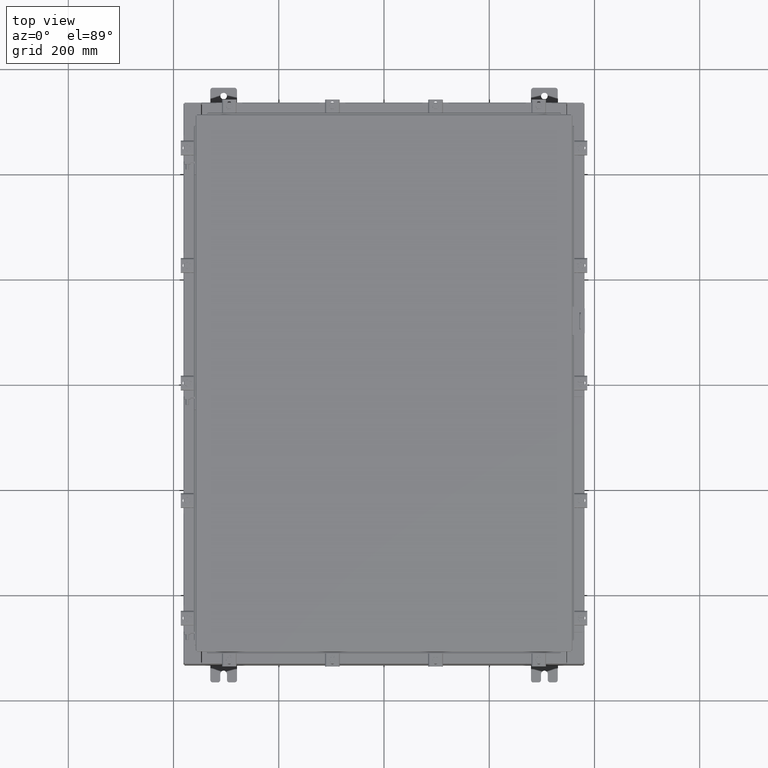
[diagram: clean part render]
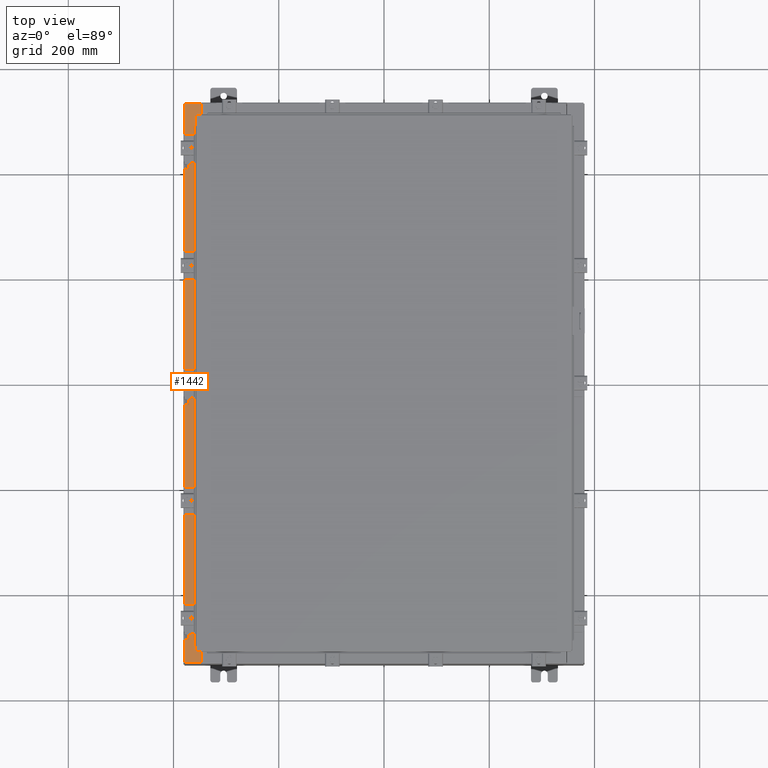
[diagram: same view with one face highlighted and labeled with its STEP entity id]
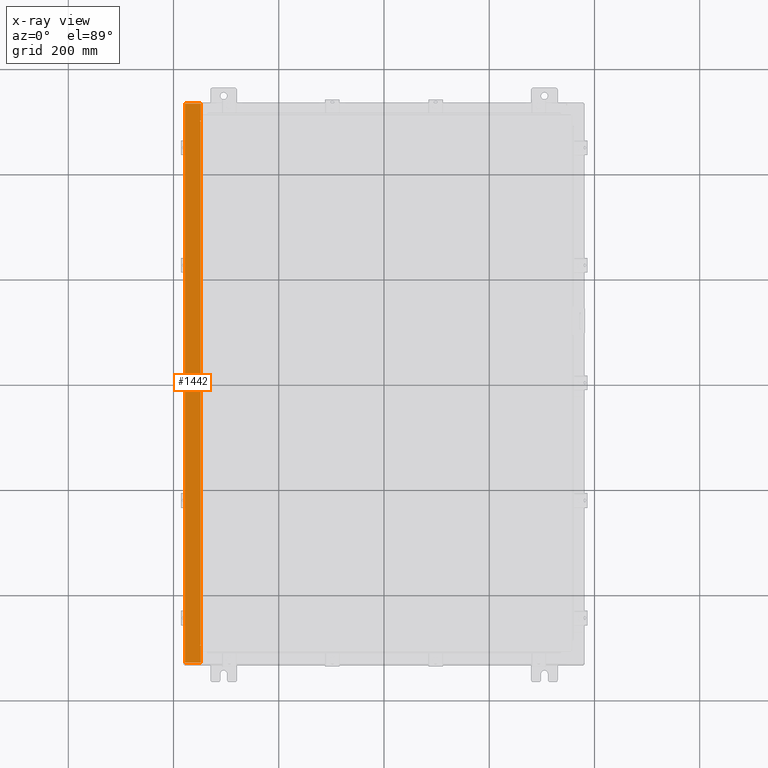
[diagram: x-ray of the same camera — body ghosted, the highlighted face saturated]
A machine part, top view. The second image highlights one B-rep face of the part: STEP entity #1442.
The next image is the same camera in x-ray: the body ghosted, the highlighted face saturated — about 0% of this face is hidden behind the body in this view.
In plain terms, the highlighted planar face has unit normal (0, 0, -1).
Its self-contained STEP definition (entity closure, byte-faithful):
#141 = EDGE_CURVE ( 'NONE', #13321, #10122, #23021, .T. ) ;
#815 = DIRECTION ( 'NONE',  ( 0.0000000000000000000, 1.000000000000000000, 0.0000000000000000000 ) ) ;
#888 = CARTESIAN_POINT ( 'NONE',  ( -14.91230000000002700, -20.92529999999998600, 7.925300000000000000 ) ) ;
#949 = VECTOR ( 'NONE', #3483, 39.37007874015748100 ) ;
#1159 = CARTESIAN_POINT ( 'NONE',  ( -13.75005000000002700, 19.61242500000000200, 7.925300000000010700 ) ) ;
#1371 = DIRECTION ( 'NONE',  ( -1.000000000000000000, 0.0000000000000000000, -7.132762385546384700E-015 ) ) ;
#1442 = ADVANCED_FACE ( 'NONE', ( #20357 ), #21675, .F. ) ;
#1450 = DIRECTION ( 'NONE',  ( 1.000000000000000000, 0.0000000000000000000, 0.0000000000000000000 ) ) ;
#1793 = VERTEX_POINT ( 'NONE', #14798 ) ;
#2578 = VECTOR ( 'NONE', #14928, 39.37007874015748100 ) ;
#2703 = CARTESIAN_POINT ( 'NONE',  ( -13.69970000000002800, 19.63110000000000400, 7.925300000000008900 ) ) ;
#3017 = ORIENTED_EDGE ( 'NONE', *, *, #10853, .T. ) ;
#3070 = DIRECTION ( 'NONE',  ( 1.000000000000000000, 0.0000000000000000000, 0.0000000000000000000 ) ) ;
#3167 = CIRCLE ( 'NONE', #22464, 0.01867499999999949400 ) ;
#3336 = LINE ( 'NONE', #14574, #18466 ) ;
#3483 = DIRECTION ( 'NONE',  ( -1.000000000000000000, 0.0000000000000000000, 2.170286390200049500E-014 ) ) ;
#3555 = VECTOR ( 'NONE', #815, 39.37007874015748100 ) ;
#3828 = LINE ( 'NONE', #19492, #23432 ) ;
#4512 = CARTESIAN_POINT ( 'NONE',  ( -13.69970000000002800, -20.92529999999998600, 7.925300000000008900 ) ) ;
#4933 = LINE ( 'NONE', #22646, #6133 ) ;
#4939 = LINE ( 'NONE', #19923, #19497 ) ;
#4994 = VERTEX_POINT ( 'NONE', #15684 ) ;
#5296 = CARTESIAN_POINT ( 'NONE',  ( -13.69970000000002800, -19.63109999999998600, 7.925300000000008900 ) ) ;
#5298 = ORIENTED_EDGE ( 'NONE', *, *, #23658, .F. ) ;
#5328 = VERTEX_POINT ( 'NONE', #6127 ) ;
#5444 = VERTEX_POINT ( 'NONE', #4512 ) ;
#5785 = CARTESIAN_POINT ( 'NONE',  ( -13.69970000000002800, 0.0000000000000000000, 7.925300000000008900 ) ) ;
#5854 = CARTESIAN_POINT ( 'NONE',  ( -13.71270000000002800, 19.59375000000000700, 7.925300000000010700 ) ) ;
#6127 = CARTESIAN_POINT ( 'NONE',  ( -13.75005000000002700, -19.59374999999998200, 7.925300000000007100 ) ) ;
#6133 = VECTOR ( 'NONE', #11228, 39.37007874015748100 ) ;
#6301 = EDGE_CURVE ( 'NONE', #5444, #20354, #18706, .T. ) ;
#7236 = VERTEX_POINT ( 'NONE', #7653 ) ;
#7323 = CARTESIAN_POINT ( 'NONE',  ( -13.75005000000002700, 19.63110000000000400, 7.925300000000007100 ) ) ;
#7602 = EDGE_CURVE ( 'NONE', #21667, #9503, #4939, .T. ) ;
#7653 = CARTESIAN_POINT ( 'NONE',  ( -13.71270000000002800, -19.59374999999998200, 7.925300000000010700 ) ) ;
#7732 = EDGE_CURVE ( 'NONE', #5328, #4994, #3167, .T. ) ;
#9223 = CARTESIAN_POINT ( 'NONE',  ( -13.75005000000002700, -19.63109999999998200, 7.925300000000010700 ) ) ;
#9363 = EDGE_CURVE ( 'NONE', #24283, #21667, #14962, .T. ) ;
#9503 = VERTEX_POINT ( 'NONE', #24239 ) ;
#9955 = VERTEX_POINT ( 'NONE', #2703 ) ;
#10013 = ORIENTED_EDGE ( 'NONE', *, *, #141, .F. ) ;
#10122 = VERTEX_POINT ( 'NONE', #16616 ) ;
#10853 = EDGE_CURVE ( 'NONE', #1793, #10122, #3336, .T. ) ;
#10980 = ORIENTED_EDGE ( 'NONE', *, *, #7602, .F. ) ;
#11228 = DIRECTION ( 'NONE',  ( 1.000000000000000000, -3.566381192773192400E-015, 7.132762385546384700E-015 ) ) ;
#11896 = DIRECTION ( 'NONE',  ( -1.000000000000000000, 0.0000000000000000000, 0.0000000000000000000 ) ) ;
#11932 = AXIS2_PLACEMENT_3D ( 'NONE', #1159, #14409, #3070 ) ;
#12081 = LINE ( 'NONE', #5785, #12692 ) ;
#12692 = VECTOR ( 'NONE', #19054, 39.37007874015748100 ) ;
#12713 = ORIENTED_EDGE ( 'NONE', *, *, #7732, .F. ) ;
#12747 = DIRECTION ( 'NONE',  ( -7.132762385546384700E-015, -0.0000000000000000000, 1.000000000000000000 ) ) ;
#12900 = VECTOR ( 'NONE', #19470, 39.37007874015748100 ) ;
#12956 = EDGE_CURVE ( 'NONE', #9955, #24283, #19947, .T. ) ;
#13259 = CARTESIAN_POINT ( 'NONE',  ( -13.75005000000002700, 19.59375000000000400, 7.925300000000007100 ) ) ;
#13321 = VERTEX_POINT ( 'NONE', #888 ) ;
#14054 = CARTESIAN_POINT ( 'NONE',  ( -13.69970000000002800, 0.0000000000000000000, 7.925300000000008900 ) ) ;
#14409 = DIRECTION ( 'NONE',  ( -7.132762385546384700E-015, -0.0000000000000000000, 1.000000000000000000 ) ) ;
#14574 = CARTESIAN_POINT ( 'NONE',  ( -5.679009539018309800E-014, 20.92530000000000700, 7.925300000000105700 ) ) ;
#14798 = CARTESIAN_POINT ( 'NONE',  ( -13.69970000000002800, 20.92530000000000700, 7.925300000000008900 ) ) ;
#14828 = CARTESIAN_POINT ( 'NONE',  ( -13.69970000000002800, 19.63110000000000400, 7.925300000000009800 ) ) ;
#14928 = DIRECTION ( 'NONE',  ( 1.000000000000000000, 0.0000000000000000000, -2.170286390200049500E-014 ) ) ;
#14962 = CIRCLE ( 'NONE', #11932, 0.01867499999999949400 ) ;
#15219 = AXIS2_PLACEMENT_3D ( 'NONE', #21221, #21129, #20178 ) ;
#15434 = EDGE_CURVE ( 'NONE', #13321, #5444, #4933, .T. ) ;
#15542 = ORIENTED_EDGE ( 'NONE', *, *, #15434, .T. ) ;
#15574 = EDGE_CURVE ( 'NONE', #4994, #20354, #17115, .T. ) ;
#15684 = CARTESIAN_POINT ( 'NONE',  ( -13.75005000000002700, -19.63109999999998200, 7.925300000000007100 ) ) ;
#16158 = ORIENTED_EDGE ( 'NONE', *, *, #6301, .T. ) ;
#16175 = DIRECTION ( 'NONE',  ( 1.000000000000000000, 0.0000000000000000000, 0.0000000000000000000 ) ) ;
#16616 = CARTESIAN_POINT ( 'NONE',  ( -14.91230000000002700, 20.92530000000000700, 7.925300000000000000 ) ) ;
#16955 = EDGE_CURVE ( 'NONE', #7236, #5328, #3828, .T. ) ;
#17115 = LINE ( 'NONE', #9223, #2578 ) ;
#17120 = LINE ( 'NONE', #5854, #21585 ) ;
#17295 = DIRECTION ( 'NONE',  ( -0.0000000000000000000, -1.000000000000000000, -0.0000000000000000000 ) ) ;
#18300 = ORIENTED_EDGE ( 'NONE', *, *, #9363, .F. ) ;
#18309 = EDGE_CURVE ( 'NONE', #9955, #1793, #12081, .T. ) ;
#18466 = VECTOR ( 'NONE', #1371, 39.37007874015748100 ) ;
#18706 = LINE ( 'NONE', #14054, #3555 ) ;
#19054 = DIRECTION ( 'NONE',  ( 0.0000000000000000000, 1.000000000000000000, 0.0000000000000000000 ) ) ;
#19470 = DIRECTION ( 'NONE',  ( -0.0000000000000000000, 1.000000000000000000, -0.0000000000000000000 ) ) ;
#19492 = CARTESIAN_POINT ( 'NONE',  ( -13.71270000000002800, -19.59374999999998200, 7.925300000000010700 ) ) ;
#19497 = VECTOR ( 'NONE', #16175, 39.37007874015748100 ) ;
#19923 = CARTESIAN_POINT ( 'NONE',  ( -13.75005000000002700, 19.59375000000000400, 7.925300000000010700 ) ) ;
#19947 = LINE ( 'NONE', #14828, #949 ) ;
#20178 = DIRECTION ( 'NONE',  ( -1.000000000000000000, 0.0000000000000000000, -7.132762385546384700E-015 ) ) ;
#20354 = VERTEX_POINT ( 'NONE', #5296 ) ;
#20357 = FACE_OUTER_BOUND ( 'NONE', #20961, .T. ) ;
#20961 = EDGE_LOOP ( 'NONE', ( #20992, #22319, #3017, #10013, #15542, #16158, #24553, #12713, #21256, #5298, #10980, #18300 ) ) ;
#20992 = ORIENTED_EDGE ( 'NONE', *, *, #12956, .F. ) ;
#21129 = DIRECTION ( 'NONE',  ( 7.132762385546384700E-015, 0.0000000000000000000, -1.000000000000000000 ) ) ;
#21221 = CARTESIAN_POINT ( 'NONE',  ( -5.679009539018309800E-014, 0.0000000000000000000, 7.925300000000105700 ) ) ;
#21256 = ORIENTED_EDGE ( 'NONE', *, *, #16955, .F. ) ;
#21585 = VECTOR ( 'NONE', #17295, 39.37007874015748100 ) ;
#21667 = VERTEX_POINT ( 'NONE', #13259 ) ;
#21675 = PLANE ( 'NONE',  #15219 ) ;
#22319 = ORIENTED_EDGE ( 'NONE', *, *, #18309, .T. ) ;
#22464 = AXIS2_PLACEMENT_3D ( 'NONE', #24167, #12747, #1450 ) ;
#22646 = CARTESIAN_POINT ( 'NONE',  ( -1.314176917633201200E-013, -20.92530000000003600, 7.925300000000105700 ) ) ;
#23021 = LINE ( 'NONE', #24329, #12900 ) ;
#23432 = VECTOR ( 'NONE', #11896, 39.37007874015748100 ) ;
#23658 = EDGE_CURVE ( 'NONE', #9503, #7236, #17120, .T. ) ;
#24167 = CARTESIAN_POINT ( 'NONE',  ( -13.75005000000002700, -19.61242499999998400, 7.925300000000010700 ) ) ;
#24239 = CARTESIAN_POINT ( 'NONE',  ( -13.71270000000002800, 19.59375000000000400, 7.925300000000010700 ) ) ;
#24283 = VERTEX_POINT ( 'NONE', #7323 ) ;
#24329 = CARTESIAN_POINT ( 'NONE',  ( -14.91230000000002700, 20.92530000000000700, 7.925300000000000000 ) ) ;
#24553 = ORIENTED_EDGE ( 'NONE', *, *, #15574, .F. ) ;